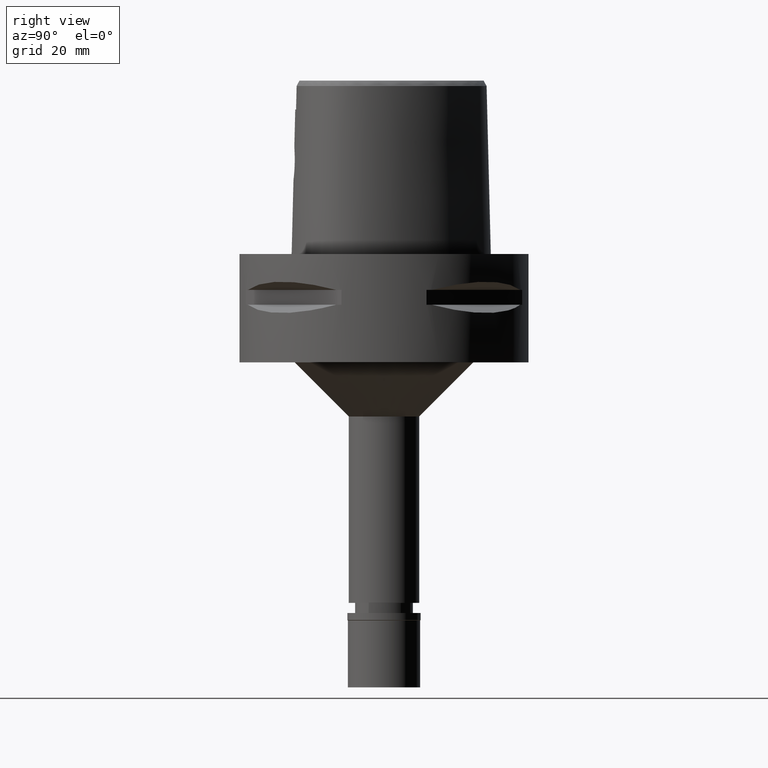
[diagram: clean part render]
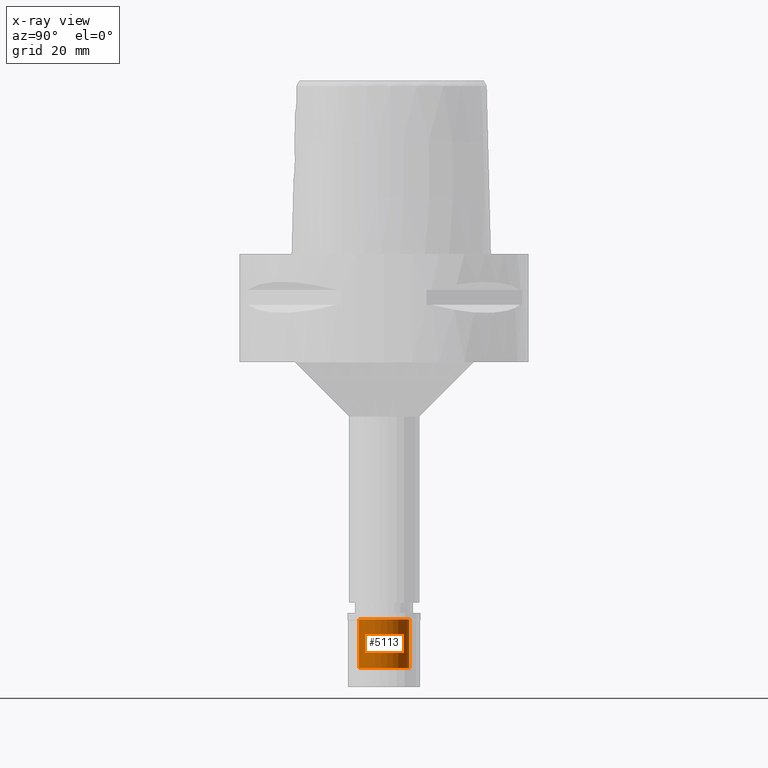
[diagram: x-ray — body ghosted, one internal face saturated and labeled with its STEP entity id]
A machine part, right view, then the same camera in x-ray: the body is ghosted and one INTERNAL B-rep face — a face not visible from any outside direction — is saturated and labeled: STEP entity #5113.
In plain terms, the highlighted cylindrical surface (edge-blend (fillet) strip) has radius 7 mm, axis along (0, 0, -1).
Its self-contained STEP definition (entity closure, byte-faithful):
#24 = VERTEX_POINT ( 'NONE', #4583 ) ;
#47 = CIRCLE ( 'NONE', #2043, 7.000000000000000000 ) ;
#127 = VECTOR ( 'NONE', #1247, 1000.000000000000000 ) ;
#353 = LINE ( 'NONE', #819, #127 ) ;
#447 = CARTESIAN_POINT ( 'NONE',  ( 0.0000000000000000000, 0.0000000000000000000, -1.800000000000000044 ) ) ;
#695 = CARTESIAN_POINT ( 'NONE',  ( 0.0000000000000000000, -7.000000000000000000, -15.29999999999999893 ) ) ;
#819 = CARTESIAN_POINT ( 'NONE',  ( 0.0000000000000000000, 7.000000000000000000, -15.29999999999999893 ) ) ;
#872 = AXIS2_PLACEMENT_3D ( 'NONE', #1780, #4925, #1383 ) ;
#1090 = DIRECTION ( 'NONE',  ( 0.0000000000000000000, 0.0000000000000000000, 1.000000000000000000 ) ) ;
#1247 = DIRECTION ( 'NONE',  ( 0.0000000000000000000, 0.0000000000000000000, 1.000000000000000000 ) ) ;
#1380 = VECTOR ( 'NONE', #1090, 1000.000000000000000 ) ;
#1383 = DIRECTION ( 'NONE',  ( 0.0000000000000000000, 1.000000000000000000, 0.0000000000000000000 ) ) ;
#1542 = CYLINDRICAL_SURFACE ( 'NONE', #5105, 7.000000000000000000 ) ;
#1780 = CARTESIAN_POINT ( 'NONE',  ( 0.0000000000000000000, 0.0000000000000000000, -15.29999999999999893 ) ) ;
#1964 = CARTESIAN_POINT ( 'NONE',  ( 0.0000000000000000000, 0.0000000000000000000, 0.0000000000000000000 ) ) ;
#2040 = DIRECTION ( 'NONE',  ( 0.0000000000000000000, -1.000000000000000000, 0.0000000000000000000 ) ) ;
#2043 = AXIS2_PLACEMENT_3D ( 'NONE', #447, #3238, #2412 ) ;
#2168 = CARTESIAN_POINT ( 'NONE',  ( 0.0000000000000000000, 7.000000000000000000, -15.29999999999999893 ) ) ;
#2201 = ORIENTED_EDGE ( 'NONE', *, *, #2542, .T. ) ;
#2396 = ORIENTED_EDGE ( 'NONE', *, *, #3617, .F. ) ;
#2412 = DIRECTION ( 'NONE',  ( 0.0000000000000000000, -1.000000000000000000, 0.0000000000000000000 ) ) ;
#2426 = EDGE_CURVE ( 'NONE', #24, #4153, #2643, .T. ) ;
#2434 = DIRECTION ( 'NONE',  ( 0.0000000000000000000, 0.0000000000000000000, -1.000000000000000000 ) ) ;
#2542 = EDGE_CURVE ( 'NONE', #4531, #24, #3124, .T. ) ;
#2617 = EDGE_LOOP ( 'NONE', ( #2201, #2855, #3186, #2396 ) ) ;
#2643 = LINE ( 'NONE', #695, #1380 ) ;
#2746 = VERTEX_POINT ( 'NONE', #3311 ) ;
#2855 = ORIENTED_EDGE ( 'NONE', *, *, #2426, .T. ) ;
#3014 = EDGE_CURVE ( 'NONE', #4153, #2746, #47, .T. ) ;
#3124 = CIRCLE ( 'NONE', #872, 7.000000000000000000 ) ;
#3168 = CARTESIAN_POINT ( 'NONE',  ( 0.0000000000000000000, -7.000000000000000000, -1.800000000000000044 ) ) ;
#3186 = ORIENTED_EDGE ( 'NONE', *, *, #3014, .T. ) ;
#3238 = DIRECTION ( 'NONE',  ( 0.0000000000000000000, 0.0000000000000000000, 1.000000000000000000 ) ) ;
#3311 = CARTESIAN_POINT ( 'NONE',  ( 0.0000000000000000000, 7.000000000000000000, -1.800000000000000044 ) ) ;
#3617 = EDGE_CURVE ( 'NONE', #4531, #2746, #353, .T. ) ;
#3895 = FACE_OUTER_BOUND ( 'NONE', #2617, .T. ) ;
#4153 = VERTEX_POINT ( 'NONE', #3168 ) ;
#4531 = VERTEX_POINT ( 'NONE', #2168 ) ;
#4583 = CARTESIAN_POINT ( 'NONE',  ( 0.0000000000000000000, -7.000000000000000000, -15.29999999999999893 ) ) ;
#4925 = DIRECTION ( 'NONE',  ( 0.0000000000000000000, 0.0000000000000000000, -1.000000000000000000 ) ) ;
#5105 = AXIS2_PLACEMENT_3D ( 'NONE', #1964, #2434, #2040 ) ;
#5113 = ADVANCED_FACE ( 'NONE', ( #3895 ), #1542, .F. ) ;